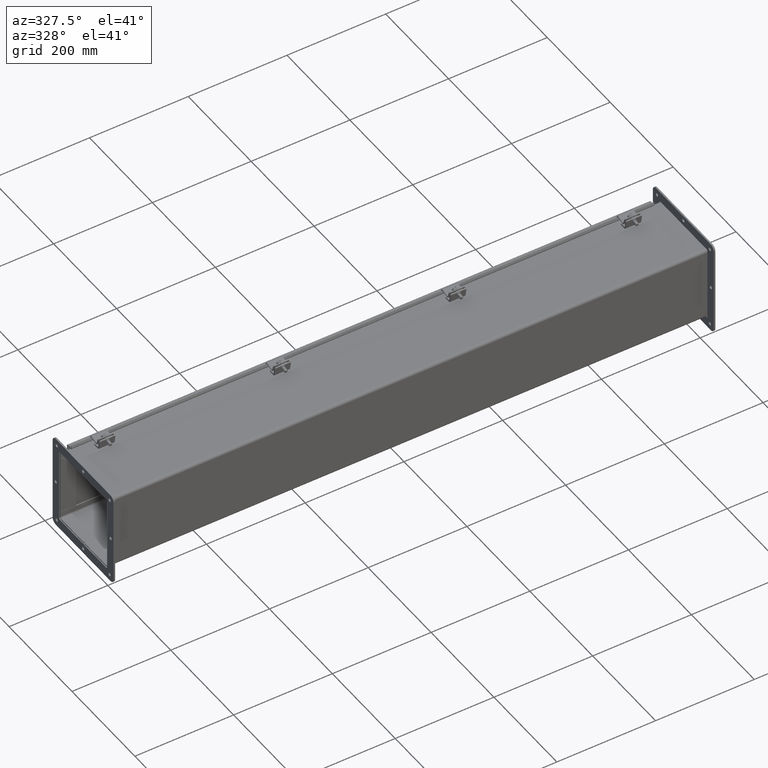
[diagram: clean part render]
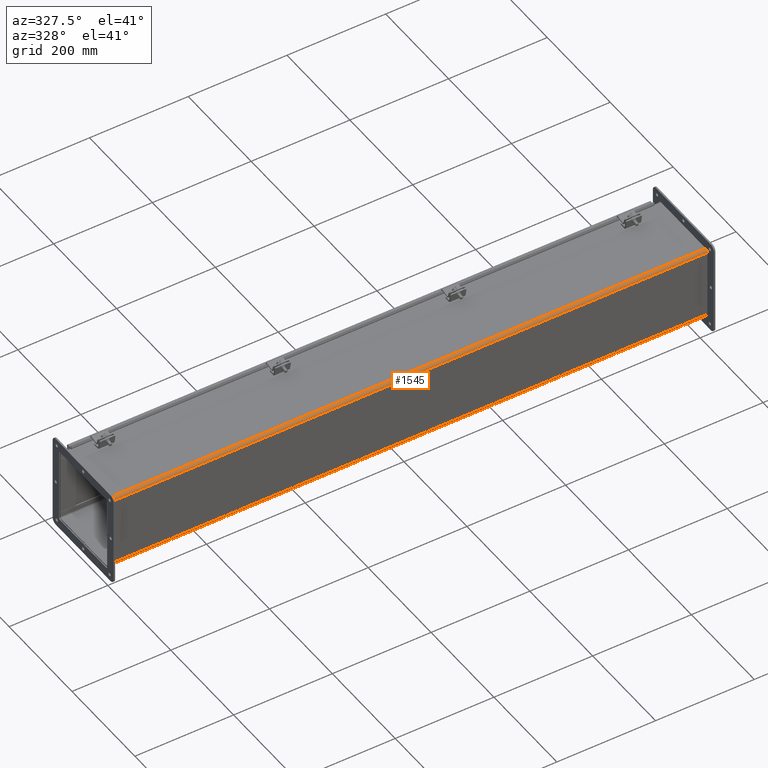
[diagram: same view with one face highlighted and labeled with its STEP entity id]
A machine part, auxiliary view. The second image highlights one B-rep face of the part: STEP entity #1545.
In plain terms, the highlighted cylindrical surface (edge-blend (fillet) strip) has radius 5.8484 mm, axis along (-1, -0, -0).
Its self-contained STEP definition (entity closure, byte-faithful):
#445=CARTESIAN_POINT('',(0.0,0.230249999999999,-2.185478E-017));
#446=VERTEX_POINT('',#445);
#453=CARTESIAN_POINT('',(0.0,-6.323867E-016,0.23025));
#454=VERTEX_POINT('',#453);
#455=CARTESIAN_POINT('',(0.0,0.230249999999999,0.23025));
#456=DIRECTION('',(-1.0,0.0,0.0));
#457=DIRECTION('',(0.0,0.0,-1.0));
#458=AXIS2_PLACEMENT_3D('',#455,#456,#457);
#459=CIRCLE('',#458,0.23025);
#460=EDGE_CURVE('',#446,#454,#459,.T.);
#1047=CARTESIAN_POINT('',(47.875000000000007,-6.279868E-016,0.23025));
#1048=VERTEX_POINT('',#1047);
#1049=CARTESIAN_POINT('',(0.0,-5.886771E-016,0.23025));
#1050=DIRECTION('',(1.0,0.0,0.0));
#1051=VECTOR('',#1050,47.875000000000007);
#1052=LINE('',#1049,#1051);
#1053=EDGE_CURVE('',#454,#1048,#1052,.T.);
#1171=CARTESIAN_POINT('',(47.875000000000007,0.230249999999999,-2.185478E-017));
#1172=VERTEX_POINT('',#1171);
#1173=CARTESIAN_POINT('',(47.875000000000007,0.230249999999999,0.23025));
#1174=DIRECTION('',(1.0,0.0,0.0));
#1175=DIRECTION('',(0.0,-1.0,0.0));
#1176=AXIS2_PLACEMENT_3D('',#1173,#1174,#1175);
#1177=CIRCLE('',#1176,0.23025);
#1178=EDGE_CURVE('',#1048,#1172,#1177,.T.);
#1529=CARTESIAN_POINT('',(0.0,0.230249999999999,0.23025));
#1530=DIRECTION('',(-1.0,0.0,0.0));
#1531=DIRECTION('',(0.0,-1.0,0.0));
#1532=AXIS2_PLACEMENT_3D('',#1529,#1530,#1531);
#1533=CYLINDRICAL_SURFACE('',#1532,0.23025);
#1534=ORIENTED_EDGE('',*,*,#1053,.F.);
#1535=ORIENTED_EDGE('',*,*,#460,.F.);
#1536=CARTESIAN_POINT('',(47.875,0.230249999999999,0.0));
#1537=DIRECTION('',(-1.0,0.0,0.0));
#1538=VECTOR('',#1537,47.875);
#1539=LINE('',#1536,#1538);
#1540=EDGE_CURVE('',#1172,#446,#1539,.T.);
#1541=ORIENTED_EDGE('',*,*,#1540,.F.);
#1542=ORIENTED_EDGE('',*,*,#1178,.F.);
#1543=EDGE_LOOP('',(#1534,#1535,#1541,#1542));
#1544=FACE_OUTER_BOUND('',#1543,.T.);
#1545=ADVANCED_FACE('',(#1544),#1533,.T.);